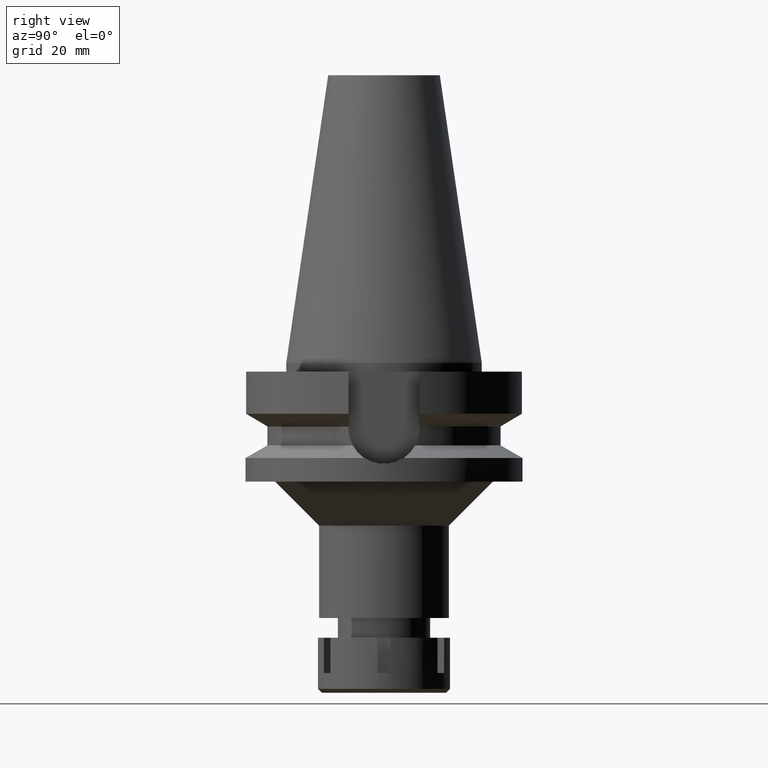
[diagram: clean part render]
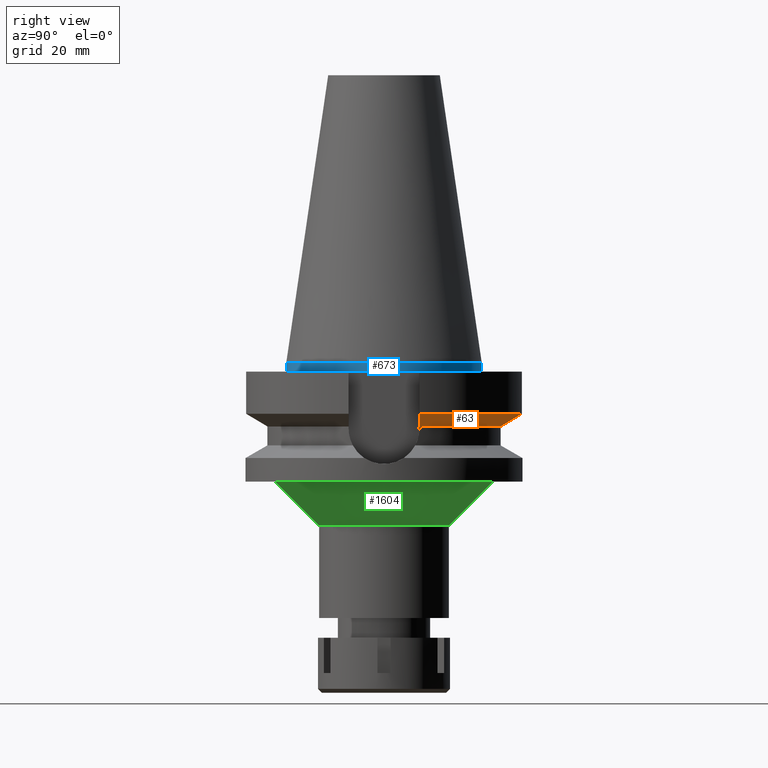
[diagram: same view with three faces highlighted in distinct colors, each labeled with its STEP entity id]
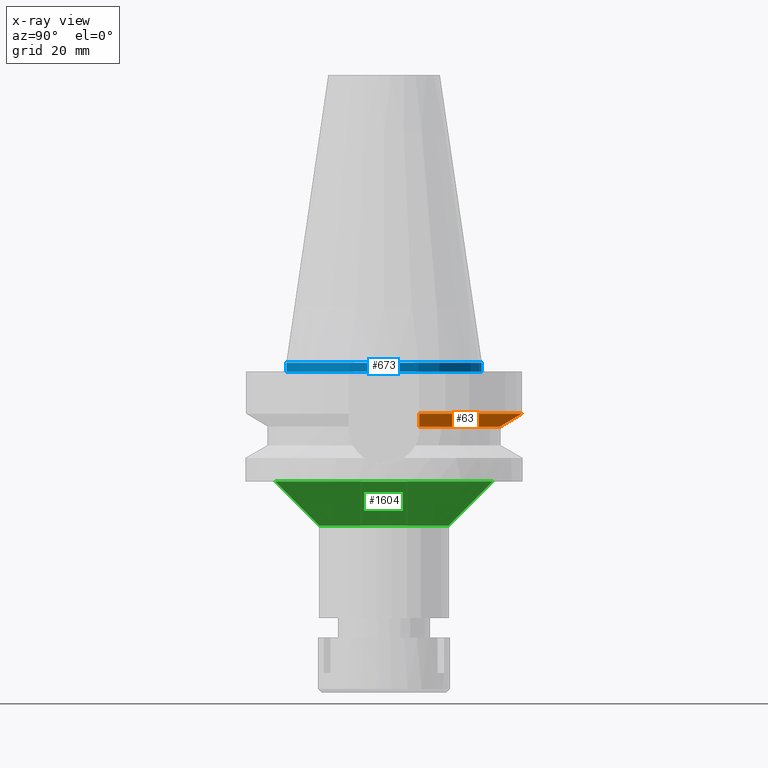
[diagram: x-ray of the same camera — body ghosted, the three highlighted faces saturated]
A machine part, right view with three faces highlighted in distinct colors.
The next image is the same camera in x-ray (body ghosted, the three faces saturated) — at least one of them is partly hidden behind the body in this view.
Their STEP definitions:

[orange] entity #63 — the highlighted conical surface has half-angle 60 deg.
#63 = ADVANCED_FACE ( 'NONE', ( #3020 ), #2657, .T. ) ;
#145 = CARTESIAN_POINT ( 'NONE',  ( 30.45402291539999950, 8.049999271319999039, -11.56551221574000010 ) ) ;
#245 = VERTEX_POINT ( 'NONE', #2576 ) ;
#358 = AXIS2_PLACEMENT_3D ( 'NONE', #2936, #691, #1518 ) ;
#499 = ORIENTED_EDGE ( 'NONE', *, *, #1155, .F. ) ;
#527 = CIRCLE ( 'NONE', #358, 26.50000000000000711 ) ;
#691 = DIRECTION ( 'NONE',  ( 0.0000000000000000000, 0.0000000000000000000, -1.000000000000000000 ) ) ;
#813 = CARTESIAN_POINT ( 'NONE',  ( 0.0000000000000000000, 1.065333950388000029E-14, -13.00888132564000088 ) ) ;
#924 = EDGE_LOOP ( 'NONE', ( #499, #1046, #2659, #2391 ) ) ;
#948 = EDGE_CURVE ( 'NONE', #2157, #1789, #1132, .T. ) ;
#985 = CARTESIAN_POINT ( 'NONE',  ( 28.57292310443015637, 8.049998543588120725, -12.61549616116207595 ) ) ;
#1046 = ORIENTED_EDGE ( 'NONE', *, *, #948, .T. ) ;
#1076 = AXIS2_PLACEMENT_3D ( 'NONE', #3021, #2982, #1349 ) ;
#1132 = B_SPLINE_CURVE_WITH_KNOTS ( 'NONE', 3,
 ( #145, #985, #2126, #2632 ),
 .UNSPECIFIED., .F., .F.,
 ( 4, 4 ),
 ( 0.0000000000000000000, 1.000000000000000000 ),
 .UNSPECIFIED. ) ;
#1155 = EDGE_CURVE ( 'NONE', #2157, #245, #2086, .T. ) ;
#1349 = DIRECTION ( 'NONE',  ( 0.0000000000000000000, 1.000000000000000000, 0.0000000000000000000 ) ) ;
#1428 = DIRECTION ( 'NONE',  ( 0.0000000000000000000, 1.000000000000000000, 0.0000000000000000000 ) ) ;
#1518 = DIRECTION ( 'NONE',  ( -0.9527442516822307583, 0.3037735849057093818, 0.0000000000000000000 ) ) ;
#1633 = CARTESIAN_POINT ( 'NONE',  ( -25.24772216763000188, 8.050001574288998540, -14.45224496965999883 ) ) ;
#1698 = DIRECTION ( 'NONE',  ( 0.0000000000000000000, 0.0000000000000000000, 1.000000000000000000 ) ) ;
#1789 = VERTEX_POINT ( 'NONE', #2999 ) ;
#1884 = AXIS2_PLACEMENT_3D ( 'NONE', #813, #1698, #1428 ) ;
#1906 = EDGE_CURVE ( 'NONE', #2692, #245, #3295, .T. ) ;
#2086 = CIRCLE ( 'NONE', #1076, 31.50000000000000000 ) ;
#2126 = CARTESIAN_POINT ( 'NONE',  ( 26.83754596706962658, 8.049990786184158864, -13.57774899320981632 ) ) ;
#2157 = VERTEX_POINT ( 'NONE', #2720 ) ;
#2391 = ORIENTED_EDGE ( 'NONE', *, *, #1906, .T. ) ;
#2437 = CARTESIAN_POINT ( 'NONE',  ( -25.24772216763000188, 8.050001574288998540, -14.45224496965999883 ) ) ;
#2500 = EDGE_CURVE ( 'NONE', #2692, #1789, #527, .T. ) ;
#2576 = CARTESIAN_POINT ( 'NONE',  ( -30.45402162456999662, 8.050004154680999946, -11.56546822906999950 ) ) ;
#2632 = CARTESIAN_POINT ( 'NONE',  ( 25.24772413682000050, 8.049995398188999118, -14.45229216245999915 ) ) ;
#2657 = CONICAL_SURFACE ( 'NONE', #1884, 29.00000000000000000, 1.047197551196400456 ) ;
#2659 = ORIENTED_EDGE ( 'NONE', *, *, #2500, .F. ) ;
#2692 = VERTEX_POINT ( 'NONE', #2437 ) ;
#2720 = CARTESIAN_POINT ( 'NONE',  ( 30.45402291539999950, 8.049999271319999039, -11.56551221574000010 ) ) ;
#2936 = CARTESIAN_POINT ( 'NONE',  ( 0.0000000000000000000, 1.065333950388000029E-14, -14.45225699861000024 ) ) ;
#2982 = DIRECTION ( 'NONE',  ( 0.0000000000000000000, 0.0000000000000000000, 1.000000000000000000 ) ) ;
#2999 = CARTESIAN_POINT ( 'NONE',  ( 25.24772413682000050, 8.049995398188999118, -14.45229216245999915 ) ) ;
#3020 = FACE_OUTER_BOUND ( 'NONE', #924, .T. ) ;
#3021 = CARTESIAN_POINT ( 'NONE',  ( 0.0000000000000000000, 1.065333950388000029E-14, -11.56550565266999975 ) ) ;
#3295 = B_SPLINE_CURVE_WITH_KNOTS ( 'NONE', 3,
 ( #1633, #3597, #3576, #3561 ),
 .UNSPECIFIED., .F., .F.,
 ( 4, 4 ),
 ( 0.0000000000000000000, 1.000000000000000000 ),
 .UNSPECIFIED. ) ;
#3561 = CARTESIAN_POINT ( 'NONE',  ( -30.45402162456999662, 8.050004154680999946, -11.56546822906999950 ) ) ;
#3576 = CARTESIAN_POINT ( 'NONE',  ( -28.57295840291982003, 8.050008304311031537, -12.61547497363526205 ) ) ;
#3597 = CARTESIAN_POINT ( 'NONE',  ( -26.83758115214301654, 8.050003151976470761, -13.57772753850578518 ) ) ;

[blue] entity #673 — the highlighted cylindrical surface (partial cylindrical patch) has radius 22.225 mm, axis along (0, 0, -1).
#69 = DIRECTION ( 'NONE',  ( 0.0000000000000000000, 0.0000000000000000000, 1.000000000000000000 ) ) ;
#73 = EDGE_CURVE ( 'NONE', #2256, #1858, #298, .T. ) ;
#188 = AXIS2_PLACEMENT_3D ( 'NONE', #344, #69, #2310 ) ;
#298 = LINE ( 'NONE', #1659, #3588 ) ;
#344 = CARTESIAN_POINT ( 'NONE',  ( 0.0000000000000000000, 2.107249747292999862E-14, -2.000000000000000000 ) ) ;
#356 = ORIENTED_EDGE ( 'NONE', *, *, #3306, .T. ) ;
#673 = ADVANCED_FACE ( 'NONE', ( #2188 ), #2410, .T. ) ;
#799 = CARTESIAN_POINT ( 'NONE',  ( 0.0000000000000000000, 22.22500000000000142, -2.000000000000000000 ) ) ;
#1065 = ORIENTED_EDGE ( 'NONE', *, *, #73, .F. ) ;
#1285 = LINE ( 'NONE', #3459, #3435 ) ;
#1337 = ORIENTED_EDGE ( 'NONE', *, *, #2451, .T. ) ;
#1539 = CARTESIAN_POINT ( 'NONE',  ( 0.0000000000000000000, -22.22500000000000142, 2.842170943039999687E-14 ) ) ;
#1586 = AXIS2_PLACEMENT_3D ( 'NONE', #2449, #2757, #3019 ) ;
#1638 = EDGE_LOOP ( 'NONE', ( #2448, #356, #1337, #1065 ) ) ;
#1655 = DIRECTION ( 'NONE',  ( 0.0000000000000000000, 0.0000000000000000000, -1.000000000000000000 ) ) ;
#1659 = CARTESIAN_POINT ( 'NONE',  ( 0.0000000000000000000, 22.22500000000000142, 7.815970093360999808E-14 ) ) ;
#1709 = EDGE_CURVE ( 'NONE', #2256, #2017, #3634, .T. ) ;
#1858 = VERTEX_POINT ( 'NONE', #799 ) ;
#2017 = VERTEX_POINT ( 'NONE', #1539 ) ;
#2188 = FACE_OUTER_BOUND ( 'NONE', #1638, .T. ) ;
#2240 = CIRCLE ( 'NONE', #188, 22.22500000000000142 ) ;
#2256 = VERTEX_POINT ( 'NONE', #3303 ) ;
#2310 = DIRECTION ( 'NONE',  ( 0.0000000000000000000, -1.000000000000000000, 0.0000000000000000000 ) ) ;
#2410 = CYLINDRICAL_SURFACE ( 'NONE', #3204, 22.22500000000000142 ) ;
#2446 = CARTESIAN_POINT ( 'NONE',  ( 0.0000000000000000000, 2.107249747292999862E-14, 72.06999999999999318 ) ) ;
#2448 = ORIENTED_EDGE ( 'NONE', *, *, #1709, .T. ) ;
#2449 = CARTESIAN_POINT ( 'NONE',  ( 0.0000000000000000000, 1.625106302469000024E-14, 2.842170943039999687E-14 ) ) ;
#2451 = EDGE_CURVE ( 'NONE', #3468, #1858, #2240, .T. ) ;
#2757 = DIRECTION ( 'NONE',  ( 0.0000000000000000000, 0.0000000000000000000, -1.000000000000000000 ) ) ;
#3013 = DIRECTION ( 'NONE',  ( 0.0000000000000000000, -1.000000000000000000, 0.0000000000000000000 ) ) ;
#3019 = DIRECTION ( 'NONE',  ( 0.0000000000000000000, 1.000000000000000000, 0.0000000000000000000 ) ) ;
#3038 = DIRECTION ( 'NONE',  ( 0.0000000000000000000, 8.171241461240999414E-14, -1.000000000000000000 ) ) ;
#3197 = DIRECTION ( 'NONE',  ( 0.0000000000000000000, -8.704148513061000085E-14, -1.000000000000000000 ) ) ;
#3204 = AXIS2_PLACEMENT_3D ( 'NONE', #2446, #1655, #3013 ) ;
#3303 = CARTESIAN_POINT ( 'NONE',  ( 0.0000000000000000000, 22.22500000000000142, 7.105427357600999334E-14 ) ) ;
#3306 = EDGE_CURVE ( 'NONE', #2017, #3468, #1285, .T. ) ;
#3435 = VECTOR ( 'NONE', #3197, 1000.000000000000000 ) ;
#3459 = CARTESIAN_POINT ( 'NONE',  ( 0.0000000000000000000, -22.22500000000000142, 7.815970093360999808E-14 ) ) ;
#3468 = VERTEX_POINT ( 'NONE', #3577 ) ;
#3577 = CARTESIAN_POINT ( 'NONE',  ( 0.0000000000000000000, -22.22500000000000142, -2.000000000000000000 ) ) ;
#3588 = VECTOR ( 'NONE', #3038, 1000.000000000000000 ) ;
#3634 = CIRCLE ( 'NONE', #1586, 22.22500000000000142 ) ;

[green] entity #1604 — the highlighted conical surface has half-angle 45 deg.
#105 = DIRECTION ( 'NONE',  ( 0.0000000000000000000, 0.0000000000000000000, 1.000000000000000000 ) ) ;
#114 = VERTEX_POINT ( 'NONE', #3315 ) ;
#142 = CARTESIAN_POINT ( 'NONE',  ( 0.0000000000000000000, -24.75000000000000000, -27.00000000000000000 ) ) ;
#558 = EDGE_CURVE ( 'NONE', #1397, #2694, #2130, .T. ) ;
#677 = VECTOR ( 'NONE', #2422, 1000.000000000000114 ) ;
#703 = DIRECTION ( 'NONE',  ( 0.0000000000000000000, 1.000000000000000000, 0.0000000000000000000 ) ) ;
#883 = EDGE_CURVE ( 'NONE', #3606, #1397, #1254, .T. ) ;
#926 = CARTESIAN_POINT ( 'NONE',  ( 0.0000000000000000000, 0.0000000000000000000, -32.00000000000000000 ) ) ;
#961 = ORIENTED_EDGE ( 'NONE', *, *, #2055, .F. ) ;
#1040 = CARTESIAN_POINT ( 'NONE',  ( 0.0000000000000000000, -14.75000000000000000, -37.00000000000000000 ) ) ;
#1064 = ORIENTED_EDGE ( 'NONE', *, *, #1304, .F. ) ;
#1254 = CIRCLE ( 'NONE', #3364, 24.75000000000000000 ) ;
#1286 = LINE ( 'NONE', #2424, #3276 ) ;
#1287 = CONICAL_SURFACE ( 'NONE', #3164, 19.75000000000000000, 0.7853981633972997312 ) ;
#1304 = EDGE_CURVE ( 'NONE', #114, #2694, #2428, .T. ) ;
#1372 = ORIENTED_EDGE ( 'NONE', *, *, #558, .T. ) ;
#1397 = VERTEX_POINT ( 'NONE', #142 ) ;
#1432 = DIRECTION ( 'NONE',  ( 0.0000000000000000000, 0.0000000000000000000, -1.000000000000000000 ) ) ;
#1444 = ORIENTED_EDGE ( 'NONE', *, *, #883, .T. ) ;
#1475 = CARTESIAN_POINT ( 'NONE',  ( 0.0000000000000000000, 0.0000000000000000000, -27.00000000000000000 ) ) ;
#1604 = ADVANCED_FACE ( 'NONE', ( #3222 ), #1287, .T. ) ;
#2018 = DIRECTION ( 'NONE',  ( 0.0000000000000000000, 1.000000000000000000, 0.0000000000000000000 ) ) ;
#2055 = EDGE_CURVE ( 'NONE', #3606, #114, #1286, .T. ) ;
#2130 = LINE ( 'NONE', #2969, #677 ) ;
#2375 = AXIS2_PLACEMENT_3D ( 'NONE', #3414, #2861, #2018 ) ;
#2406 = DIRECTION ( 'NONE',  ( 0.0000000000000000000, -0.7071067811865474617, -0.7071067811865474617 ) ) ;
#2422 = DIRECTION ( 'NONE',  ( 0.0000000000000000000, 0.7071067811865474617, -0.7071067811865474617 ) ) ;
#2424 = CARTESIAN_POINT ( 'NONE',  ( 0.0000000000000000000, 24.75000000000000000, -27.00000000000000000 ) ) ;
#2428 = CIRCLE ( 'NONE', #2375, 14.75000000000000000 ) ;
#2553 = DIRECTION ( 'NONE',  ( 0.0000000000000000000, 1.000000000000000000, 0.0000000000000000000 ) ) ;
#2694 = VERTEX_POINT ( 'NONE', #1040 ) ;
#2861 = DIRECTION ( 'NONE',  ( 0.0000000000000000000, 0.0000000000000000000, -1.000000000000000000 ) ) ;
#2969 = CARTESIAN_POINT ( 'NONE',  ( 0.0000000000000000000, -24.75000000000000000, -27.00000000000000000 ) ) ;
#3164 = AXIS2_PLACEMENT_3D ( 'NONE', #926, #105, #703 ) ;
#3222 = FACE_OUTER_BOUND ( 'NONE', #3255, .T. ) ;
#3255 = EDGE_LOOP ( 'NONE', ( #1444, #1372, #1064, #961 ) ) ;
#3276 = VECTOR ( 'NONE', #2406, 1000.000000000000114 ) ;
#3315 = CARTESIAN_POINT ( 'NONE',  ( 0.0000000000000000000, 14.75000000000000000, -37.00000000000000000 ) ) ;
#3364 = AXIS2_PLACEMENT_3D ( 'NONE', #1475, #1432, #2553 ) ;
#3400 = CARTESIAN_POINT ( 'NONE',  ( 0.0000000000000000000, 24.75000000000000000, -27.00000000000000000 ) ) ;
#3414 = CARTESIAN_POINT ( 'NONE',  ( 0.0000000000000000000, 0.0000000000000000000, -37.00000000000000000 ) ) ;
#3606 = VERTEX_POINT ( 'NONE', #3400 ) ;